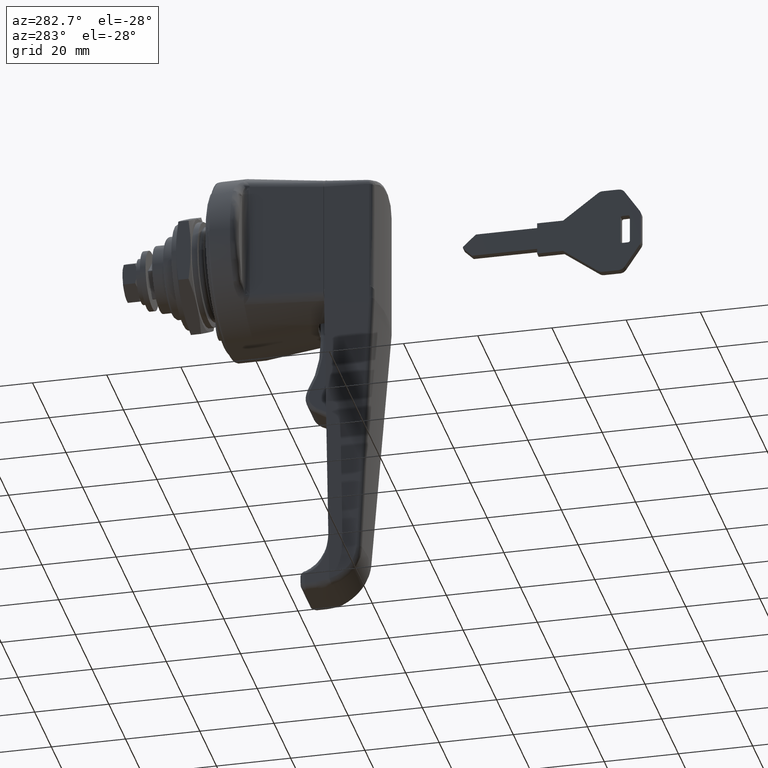
[diagram: clean part render]
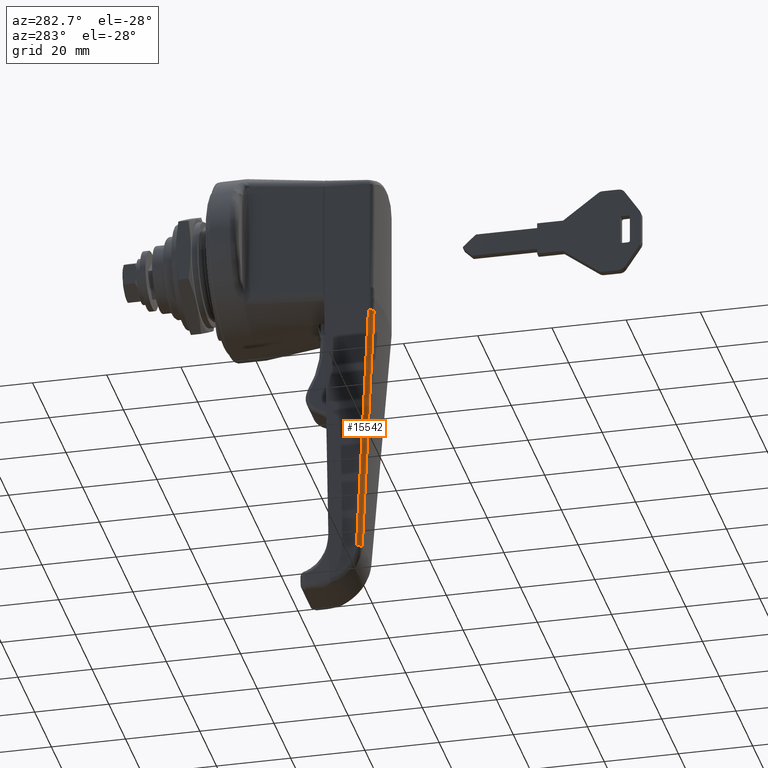
[diagram: same view with one face highlighted and labeled with its STEP entity id]
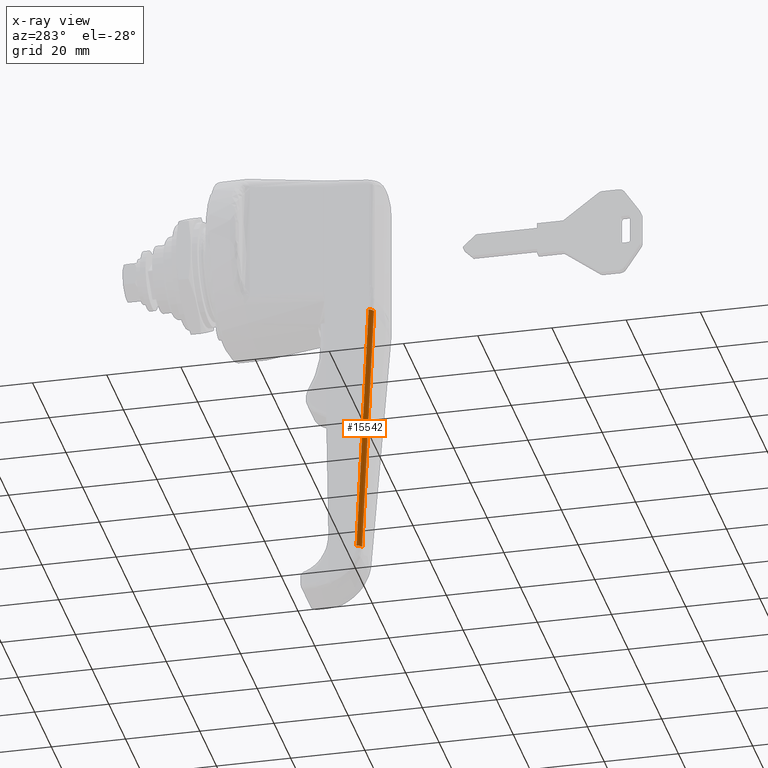
[diagram: x-ray of the same camera — body ghosted, the highlighted face saturated]
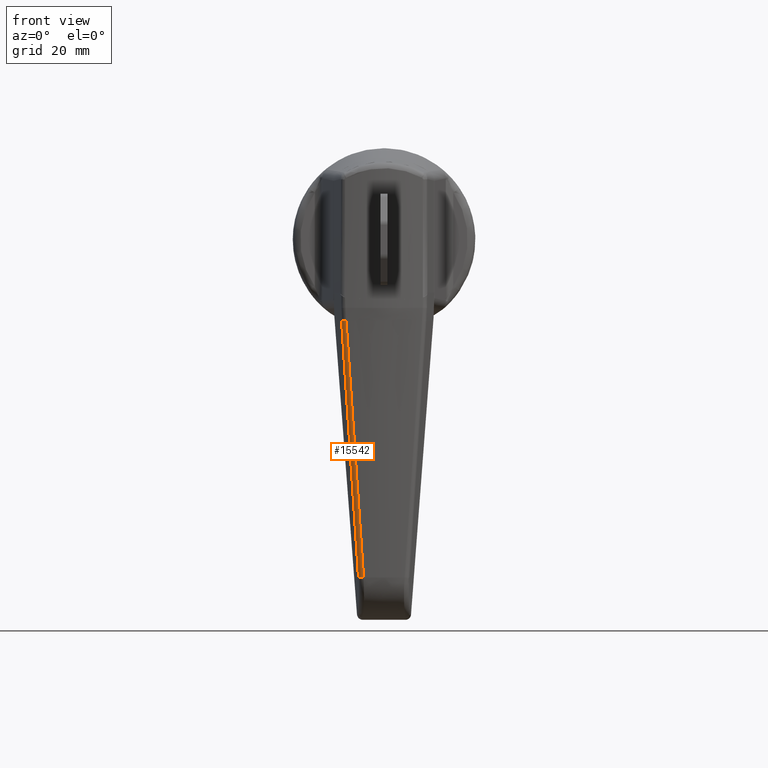
[diagram: same view with one face highlighted and labeled with its STEP entity id]
A machine part, auxiliary view. The second image highlights one B-rep face of the part: STEP entity #15542.
The next image is the same camera in x-ray: the body ghosted, the highlighted face saturated — about 0% of this face is hidden behind the body in this view.
A second angle (front view) of the same face is appended — the face is thin or edge-on in the first view.
In plain terms, the highlighted face is a freeform B-spline surface patch.
Its self-contained STEP definition (entity closure, byte-faithful):
#14591=CARTESIAN_POINT('',(-37.268667890630063,6.699473645642830,-88.874029851411095));
#14592=VERTEX_POINT('',#14591);
#14593=CARTESIAN_POINT('',(-38.522935377319499,5.383446942940050,-88.870612396524706));
#14594=VERTEX_POINT('',#14593);
#14595=CARTESIAN_POINT('',(-37.268667890630063,6.699473645642830,-88.874029851411095));
#14596=CARTESIAN_POINT('',(-37.429119921202357,6.673585973680270,-88.882931177378410));
#14597=CARTESIAN_POINT('',(-37.722023691537871,6.575375734425831,-88.895840557092271));
#14598=CARTESIAN_POINT('',(-38.121508402638703,6.286069728586388,-88.903263636541567));
#14599=CARTESIAN_POINT('',(-38.409692383972761,5.881874305187733,-88.895804085555497));
#14600=CARTESIAN_POINT('',(-38.504798064541539,5.544922774550704,-88.879999043222284));
#14601=CARTESIAN_POINT('',(-38.522935377319499,5.383446942940050,-88.870612396524706));
#14602=B_SPLINE_CURVE_WITH_KNOTS('',3,(#14595,#14596,#14597,#14598,#14599,#14600,#14601),.UNSPECIFIED.,.F.,.U.,(4,1,1,1,4),(0.000000190302765,0.488300674603442,0.915573333536417,1.464901643205047,1.953202127505895),.UNSPECIFIED.);
#14603=EDGE_CURVE('',#14592,#14594,#14602,.T.);
#15267=CARTESIAN_POINT('',(-41.510032861910247,11.156030345127160,-21.404145801841700));
#15268=VERTEX_POINT('',#15267);
#15269=CARTESIAN_POINT('',(-42.742906756508162,9.977835292923851,-21.399162970487549));
#15270=VERTEX_POINT('',#15269);
#15271=CARTESIAN_POINT('',(-41.510032861910247,11.156030345127160,-21.404145801841700));
#15272=CARTESIAN_POINT('',(-41.640454957785593,11.135009321301920,-21.410516538912979));
#15273=CARTESIAN_POINT('',(-41.914056871667533,11.052725710085291,-21.421339161416739));
#15274=CARTESIAN_POINT('',(-42.283041016639942,10.813951046321250,-21.427426604208069));
#15275=CARTESIAN_POINT('',(-42.588988889073512,10.446999595748700,-21.421225712577289));
#15276=CARTESIAN_POINT('',(-42.708406613906483,10.144119247509540,-21.408177229010558));
#15277=CARTESIAN_POINT('',(-42.742906756508162,9.977835292923851,-21.399162970487549));
#15278=B_SPLINE_CURVE_WITH_KNOTS('',3,(#15271,#15272,#15273,#15274,#15275,#15276,#15277),.UNSPECIFIED.,.F.,.U.,(4,1,1,1,4),(0.000000218923111,0.396798161405805,0.850305664615902,1.303770061182750,1.813944018476971),.UNSPECIFIED.);
#15279=EDGE_CURVE('',#15268,#15270,#15278,.T.);
#15464=CARTESIAN_POINT('',(-41.521427242583265,11.179492090086326,-21.071649269048756));
#15465=CARTESIAN_POINT('',(-41.514831431021122,11.172123130905518,-21.182344932521140));
#15466=CARTESIAN_POINT('',(-41.508235625248595,11.164754178192965,-21.293040498828105));
#15467=CARTESIAN_POINT('',(-40.182596159892078,9.683725950405634,-43.540877442105952));
#15468=CARTESIAN_POINT('',(-38.766586132418112,8.196094870422350,-66.063255205357578));
#15469=CARTESIAN_POINT('',(-37.252192868492919,6.693446384751263,-88.987574824941817));
#15470=CARTESIAN_POINT('',(-37.244659285801639,6.685971228269531,-89.101615386009556));
#15471=CARTESIAN_POINT('',(-37.237125710159070,6.678496078781842,-89.215655840376712));
#15472=CARTESIAN_POINT('',(-41.525617794815339,11.178814494532897,-21.071868575285343));
#15473=CARTESIAN_POINT('',(-41.519022736026606,11.171445789279581,-21.182559333290683));
#15474=CARTESIAN_POINT('',(-41.512427680134920,11.164077087263149,-21.293250042672469));
#15475=CARTESIAN_POINT('',(-40.186880226558820,9.683033657993150,-43.541096060260749));
#15476=CARTESIAN_POINT('',(-38.770961143157741,8.195387151854902,-66.063488072027738));
#15477=CARTESIAN_POINT('',(-37.256659119057282,6.692722744485237,-88.987827849226392));
#15478=CARTESIAN_POINT('',(-37.249125634644514,6.685247155923384,-89.101873893962704));
#15479=CARTESIAN_POINT('',(-37.241592153759626,6.677771570862321,-89.215919885291470));
#15480=CARTESIAN_POINT('',(-42.551062747935674,11.013004142568878,-21.125533691727384));
#15481=CARTESIAN_POINT('',(-42.544707149700933,11.005688645012768,-21.235026888697572));
#15482=CARTESIAN_POINT('',(-42.538350872216697,10.998372365618676,-21.344531787665971));
#15483=CARTESIAN_POINT('',(-41.246798416468472,9.511754035660195,-43.595184237905528));
#15484=CARTESIAN_POINT('',(-39.865703181607159,8.018297468360562,-66.121757399441321));
#15485=CARTESIAN_POINT('',(-38.387576678982299,6.509486835052563,-89.051897162491258));
#15486=CARTESIAN_POINT('',(-38.380135264681307,6.501890945929230,-89.167335637921909));
#15487=CARTESIAN_POINT('',(-38.372692973164206,6.494294161379838,-89.282787721584313));
#15488=CARTESIAN_POINT('',(-42.763420369825610,9.996461764624250,-21.066854999367759));
#15489=CARTESIAN_POINT('',(-42.756871515984848,9.988864491853262,-21.177549160587031));
#15490=CARTESIAN_POINT('',(-42.750322665021578,9.981267222420389,-21.288243273169268));
#15491=CARTESIAN_POINT('',(-41.434062004642684,8.454283796341443,-43.536773060220604));
#15492=CARTESIAN_POINT('',(-40.025256474723015,6.920497912886383,-66.059689878660137));
#15493=CARTESIAN_POINT('',(-38.515935045417862,5.371234182309868,-88.984398585410617));
#15494=CARTESIAN_POINT('',(-38.508426338998703,5.363526767379646,-89.098446464199867));
#15495=CARTESIAN_POINT('',(-38.500917636096723,5.355819356059675,-89.212494289567601));
#15496=CARTESIAN_POINT('',(-42.764288396866128,9.992306574600622,-21.066615145995780));
#15497=CARTESIAN_POINT('',(-42.757738706360875,9.984708373956845,-21.177314228899299));
#15498=CARTESIAN_POINT('',(-42.751189021606116,9.977110179984173,-21.288013214610430));
#15499=CARTESIAN_POINT('',(-41.434819088003316,8.450008575886894,-43.536536911105166));
#15500=CARTESIAN_POINT('',(-40.025894267469909,6.916109607384469,-66.059441772125936));
#15501=CARTESIAN_POINT('',(-38.516442086073795,5.366737861674819,-88.984131952827553));
#15502=CARTESIAN_POINT('',(-38.508933083733993,5.359030273314483,-89.098174354653054));
#15503=CARTESIAN_POINT('',(-38.501424088421572,5.351322692167429,-89.212216649749777));
#15511=(BOUNDED_SURFACE()B_SPLINE_SURFACE(3,2,((#15464,#15472,#15480,#15488,#15496),(#15465,#15473,#15481,#15489,#15497),(#15466,#15474,#15482,#15490,#15498),(#15467,#15475,#15483,#15491,#15499),(#15468,#15476,#15484,#15492,#15500),(#15469,#15477,#15485,#15493,#15501),(#15470,#15478,#15486,#15494,#15502),(#15471,#15479,#15487,#15495,#15503)),.UNSPECIFIED.,.F.,.F.,.U.)B_SPLINE_SURFACE_WITH_KNOTS((4,2,2,4),(3,1,1,3),(0.0,0.345510551890661,69.447622474587462,69.793133026486032),(0.0,0.010129404799991,2.036007908981905,2.046139814826417),.UNSPECIFIED.)GEOMETRIC_REPRESENTATION_ITEM()RATIONAL_B_SPLINE_SURFACE(((1.001771456307648,1.000885728153824,0.822854583974927,1.000885946848366,1.001771893696733),(1.001771895970834,1.000885947985417,0.822810617709651,1.000886166734238,1.001772333468475),(1.001772335634020,1.000886167817010,0.822766651444375,1.000886386620109,1.001772773240218),(1.001860707936316,1.000930353968158,0.813929431927399,1.000930583681230,1.001861167362460),(1.001951601385073,1.000975800692537,0.804840098069983,1.000976041626829,1.001952083253658),(1.002045825436024,1.001022912718012,0.795417704396911,1.001023165284703,1.002046330569406),(1.002046294212387,1.001023147106193,0.795370826817490,1.001023399730757,1.002046799461513),(1.002046762988749,1.001023381494375,0.795323949238068,1.001023634176811,1.002047268353621)))REPRESENTATION_ITEM('')SURFACE());
#15512=CARTESIAN_POINT('',(-37.268667890630027,6.699473645642816,-88.874029851411123));
#15513=CARTESIAN_POINT('',(-39.530309244700348,8.943894025343633,-54.633948061536437));
#15514=CARTESIAN_POINT('',(-41.510032861910247,11.156030345127160,-21.404145801841700));
#15522=(BOUNDED_CURVE()B_SPLINE_CURVE(2,(#15512,#15513,#15514),.UNSPECIFIED.,.F.,.U.)CURVE()GEOMETRIC_REPRESENTATION_ITEM()QUASI_UNIFORM_CURVE()RATIONAL_B_SPLINE_CURVE((1.0,0.998918431768119,1.0))REPRESENTATION_ITEM(''));
#15523=EDGE_CURVE('',#14592,#15268,#15522,.T.);
#15524=ORIENTED_EDGE('',*,*,#15523,.F.);
#15525=ORIENTED_EDGE('',*,*,#14603,.T.);
#15526=CARTESIAN_POINT('',(-42.742906756508162,9.977835292923851,-21.399162970487549));
#15527=CARTESIAN_POINT('',(-40.777079227849420,7.697282385930288,-54.629982011749874));
#15528=CARTESIAN_POINT('',(-38.522935377319499,5.383446942940050,-88.870612396524706));
#15536=(BOUNDED_CURVE()B_SPLINE_CURVE(2,(#15526,#15527,#15528),.UNSPECIFIED.,.F.,.U.)CURVE()GEOMETRIC_REPRESENTATION_ITEM()QUASI_UNIFORM_CURVE()RATIONAL_B_SPLINE_CURVE((1.0,0.998918431768209,1.0))REPRESENTATION_ITEM(''));
#15537=EDGE_CURVE('',#15270,#14594,#15536,.T.);
#15538=ORIENTED_EDGE('',*,*,#15537,.F.);
#15539=ORIENTED_EDGE('',*,*,#15279,.F.);
#15540=EDGE_LOOP('',(#15524,#15525,#15538,#15539));
#15541=FACE_OUTER_BOUND('',#15540,.T.);
#15542=ADVANCED_FACE('',(#15541),#15511,.T.);